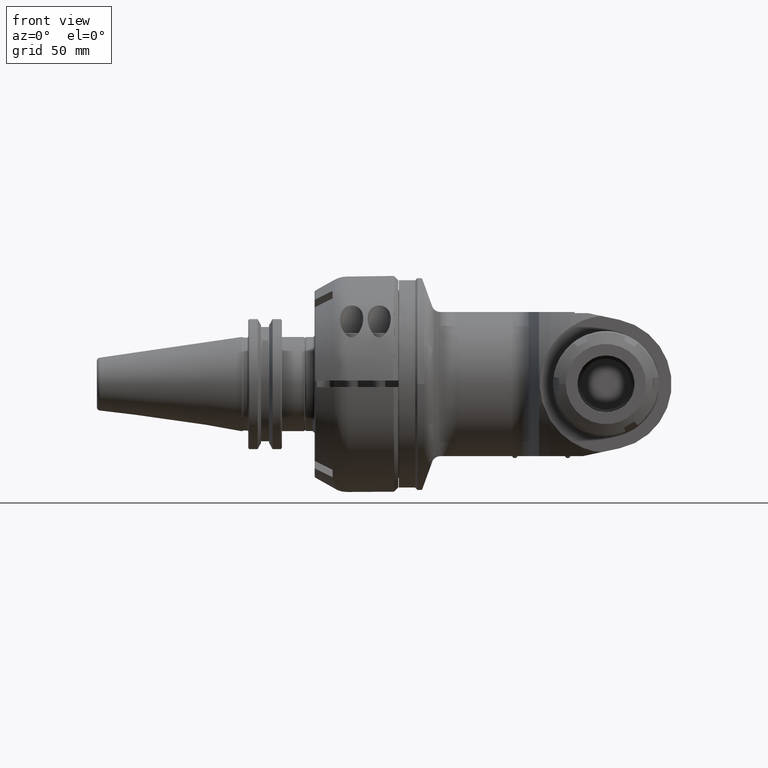
[diagram: clean part render]
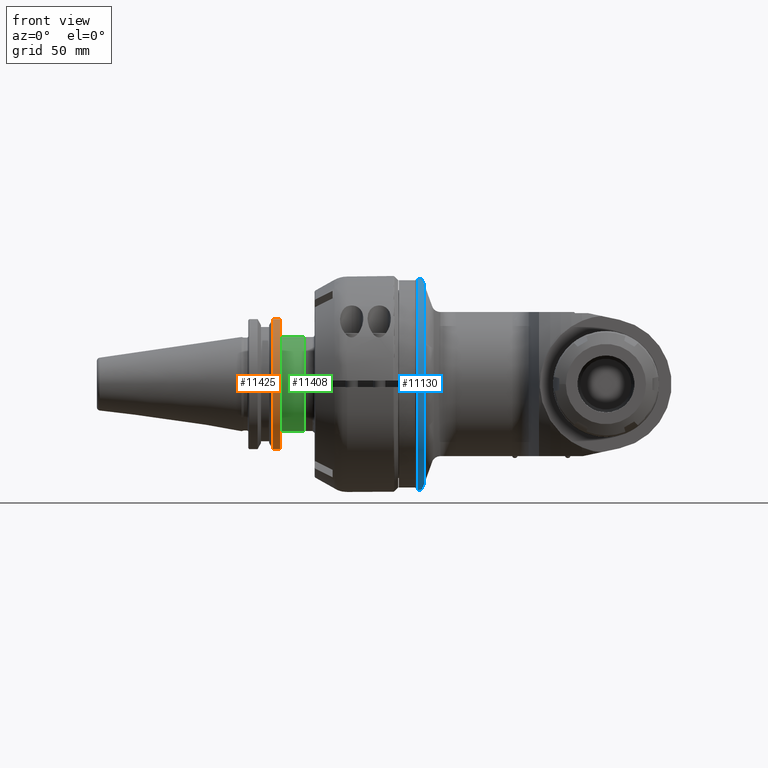
[diagram: same view with three faces highlighted in distinct colors, each labeled with its STEP entity id]
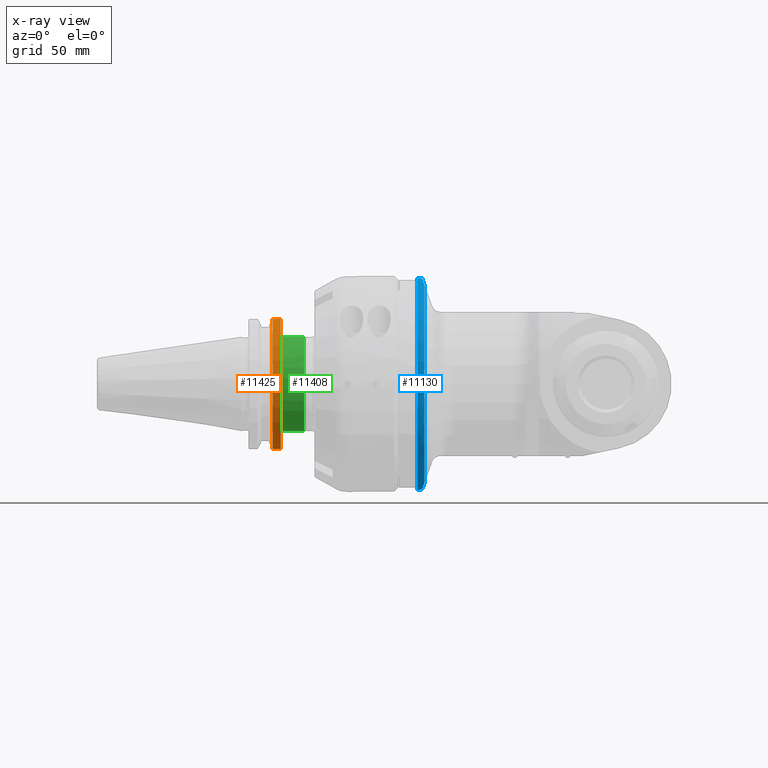
[diagram: x-ray of the same camera — body ghosted, the three highlighted faces saturated]
A machine part, front view with three faces highlighted in distinct colors.
The next image is the same camera in x-ray (body ghosted, the three faces saturated) — at least one of them is partly hidden behind the body in this view.
Their STEP definitions:

[orange] entity #11425 — the highlighted cylindrical surface (partial cylindrical patch) has radius 31.75 mm, axis along (1, 0, 0).
#1208=LINE('',#28656,#1882);
#1216=LINE('',#28742,#1890);
#1882=VECTOR('',#15844,3.88932990993402);
#1890=VECTOR('',#15860,3.88932990948002);
#2099=CYLINDRICAL_SURFACE('',#12715,31.75);
#2860=FACE_OUTER_BOUND('',#3603,.T.);
#3603=EDGE_LOOP('',(#10246,#10247,#10248,#10249));
#4224=CIRCLE('',#12714,31.75);
#4225=CIRCLE('',#12716,31.75);
#5309=VERTEX_POINT('',#28635);
#5310=VERTEX_POINT('',#28655);
#5321=VERTEX_POINT('',#28734);
#5322=VERTEX_POINT('',#28741);
#6964=EDGE_CURVE('',#5310,#5309,#1208,.T.);
#6980=EDGE_CURVE('',#5322,#5321,#1216,.T.);
#6982=EDGE_CURVE('',#5322,#5309,#4224,.T.);
#6983=EDGE_CURVE('',#5310,#5321,#4225,.T.);
#10246=ORIENTED_EDGE('',*,*,#6983,.F.);
#10247=ORIENTED_EDGE('',*,*,#6964,.T.);
#10248=ORIENTED_EDGE('',*,*,#6982,.F.);
#10249=ORIENTED_EDGE('',*,*,#6980,.T.);
#11425=ADVANCED_FACE('',(#2860),#2099,.T.);
#12714=AXIS2_PLACEMENT_3D('',#28763,#15863,#15864);
#12715=AXIS2_PLACEMENT_3D('',#28764,#15865,#15866);
#12716=AXIS2_PLACEMENT_3D('',#28765,#15867,#15868);
#15844=DIRECTION('',(-0.999999999999995,-9.55706743016595E-8,-2.55212608832199E-8));
#15860=DIRECTION('',(0.999999999999995,9.55799051954895E-8,-2.55237272048599E-8));
#15863=DIRECTION('center_axis',(-1.,0.,0.));
#15864=DIRECTION('ref_axis',(0.,-0.258000000000008,-0.96614491666623));
#15865=DIRECTION('center_axis',(1.,0.,0.));
#15866=DIRECTION('ref_axis',(0.,0.,1.));
#15867=DIRECTION('center_axis',(1.,0.,0.));
#15868=DIRECTION('ref_axis',(0.,-0.258000000000008,0.96614491666623));
#28635=CARTESIAN_POINT('',(120.723763787378,-8.19150055406944,30.675100977416));
#28655=CARTESIAN_POINT('',(124.613097,-8.1915,30.67510110415));
#28656=CARTESIAN_POINT('',(124.613097,-8.1915,30.67510110415));
#28734=CARTESIAN_POINT('',(124.613097,-8.1915,-30.67510110415));
#28741=CARTESIAN_POINT('',(120.723763787959,-8.19150055396325,-30.6751009778079));
#28742=CARTESIAN_POINT('',(120.7237670905,-8.191500371742,-30.67510100488));
#28763=CARTESIAN_POINT('Origin',(120.7237637691,0.,0.));
#28764=CARTESIAN_POINT('Origin',(117.175597,0.,0.));
#28765=CARTESIAN_POINT('Origin',(124.613097,0.,0.));

[blue] entity #11130 — the highlighted cylindrical surface (bore or boss wall) has radius 50 mm, axis along (-1, 0, 0).
#312=ELLIPSE('',#12152,53.2088886237962,50.);
#313=ELLIPSE('',#12154,53.2088886237962,50.);
#963=LINE('',#20602,#1637);
#1637=VECTOR('',#14483,50.);
#2036=CYLINDRICAL_SURFACE('',#12150,50.);
#2565=FACE_OUTER_BOUND('',#3278,.T.);
#3278=EDGE_LOOP('',(#8672,#8673,#8674,#8675,#8676,#8677,#8678,#8679,#8680));
#3996=CIRCLE('',#12148,50.);
#3997=CIRCLE('',#12149,50.);
#3998=CIRCLE('',#12151,50.);
#3999=CIRCLE('',#12153,50.);
#4000=CIRCLE('',#12155,50.);
#4806=VERTEX_POINT('',#20595);
#4807=VERTEX_POINT('',#20596);
#4808=VERTEX_POINT('',#20601);
#4809=VERTEX_POINT('',#20603);
#4810=VERTEX_POINT('',#20605);
#4811=VERTEX_POINT('',#20607);
#4812=VERTEX_POINT('',#20609);
#6194=EDGE_CURVE('',#4806,#4807,#3996,.T.);
#6196=EDGE_CURVE('',#4807,#4806,#3997,.T.);
#6197=EDGE_CURVE('',#4806,#4808,#963,.T.);
#6198=EDGE_CURVE('',#4809,#4808,#3998,.T.);
#6199=EDGE_CURVE('',#4810,#4809,#312,.T.);
#6200=EDGE_CURVE('',#4811,#4810,#3999,.T.);
#6201=EDGE_CURVE('',#4811,#4812,#313,.T.);
#6202=EDGE_CURVE('',#4808,#4812,#4000,.T.);
#8672=ORIENTED_EDGE('',*,*,#6194,.F.);
#8673=ORIENTED_EDGE('',*,*,#6197,.T.);
#8674=ORIENTED_EDGE('',*,*,#6198,.F.);
#8675=ORIENTED_EDGE('',*,*,#6199,.F.);
#8676=ORIENTED_EDGE('',*,*,#6200,.F.);
#8677=ORIENTED_EDGE('',*,*,#6201,.T.);
#8678=ORIENTED_EDGE('',*,*,#6202,.F.);
#8679=ORIENTED_EDGE('',*,*,#6197,.F.);
#8680=ORIENTED_EDGE('',*,*,#6196,.F.);
#11130=ADVANCED_FACE('',(#2565),#2036,.T.);
#12148=AXIS2_PLACEMENT_3D('',#20597,#14476,#14477);
#12149=AXIS2_PLACEMENT_3D('',#20599,#14479,#14480);
#12150=AXIS2_PLACEMENT_3D('',#20600,#14481,#14482);
#12151=AXIS2_PLACEMENT_3D('',#20604,#14484,#14485);
#12152=AXIS2_PLACEMENT_3D('',#20606,#14486,#14487);
#12153=AXIS2_PLACEMENT_3D('',#20608,#14488,#14489);
#12154=AXIS2_PLACEMENT_3D('',#20610,#14490,#14491);
#12155=AXIS2_PLACEMENT_3D('',#20611,#14492,#14493);
#14476=DIRECTION('center_axis',(-1.,0.,0.));
#14477=DIRECTION('ref_axis',(0.,1.,0.));
#14479=DIRECTION('center_axis',(-1.,0.,0.));
#14480=DIRECTION('ref_axis',(0.,1.,0.));
#14481=DIRECTION('center_axis',(-1.,0.,0.));
#14482=DIRECTION('ref_axis',(0.,1.,0.));
#14483=DIRECTION('',(1.,0.,0.));
#14484=DIRECTION('center_axis',(1.,0.,0.));
#14485=DIRECTION('ref_axis',(0.,-0.348098553492607,0.937457944153419));
#14486=DIRECTION('center_axis',(0.939692620785897,0.,0.342020143325699));
#14487=DIRECTION('ref_axis',(0.342020143325699,0.,-0.939692620785897));
#14488=DIRECTION('center_axis',(1.,0.,0.));
#14489=DIRECTION('ref_axis',(0.,0.348098553492607,-0.937457944153419));
#14490=DIRECTION('center_axis',(-0.939692620785897,0.,0.342020143325699));
#14491=DIRECTION('ref_axis',(-0.342020143325699,0.,-0.939692620785897));
#14492=DIRECTION('center_axis',(1.,0.,0.));
#14493=DIRECTION('ref_axis',(0.,-0.348098553492607,0.937457944153419));
#20595=CARTESIAN_POINT('',(189.063097,-50.,-1.836970198721E-14));
#20596=CARTESIAN_POINT('',(189.063097,50.,6.12323399573677E-15));
#20597=CARTESIAN_POINT('Origin',(189.063097,0.,0.));
#20599=CARTESIAN_POINT('Origin',(189.063097,0.,0.));
#20600=CARTESIAN_POINT('Origin',(230.669348,0.,0.));
#20601=CARTESIAN_POINT('',(192.377745635738,-50.,6.12323399573677E-15));
#20602=CARTESIAN_POINT('',(230.669348,-50.,6.12323399573677E-15));
#20603=CARTESIAN_POINT('',(192.3777456357,-17.40492767463,46.87289720767));
#20604=CARTESIAN_POINT('Origin',(192.3777456357,0.,0.));
#20605=CARTESIAN_POINT('',(192.3777456357,17.40492767463,46.87289720767));
#20606=CARTESIAN_POINT('Origin',(209.438085013152,0.,0.));
#20607=CARTESIAN_POINT('',(192.3777456357,17.40492767463,-46.87289720767));
#20608=CARTESIAN_POINT('Origin',(192.3777456357,0.,0.));
#20609=CARTESIAN_POINT('',(192.3777456357,-17.40492767463,-46.87289720767));
#20610=CARTESIAN_POINT('Origin',(209.438085013152,0.,0.));
#20611=CARTESIAN_POINT('Origin',(192.3777456357,0.,0.));

[green] entity #11408 — the highlighted cylindrical surface (bore or boss wall) has radius 22.225 mm, axis along (1, 0, 0).
#1180=LINE('',#28445,#1854);
#1854=VECTOR('',#15764,22.225);
#2096=CYLINDRICAL_SURFACE('',#12682,22.225);
#2843=FACE_OUTER_BOUND('',#3583,.T.);
#3583=EDGE_LOOP('',(#10134,#10135,#10136,#10137,#10138));
#4207=CIRCLE('',#12680,22.225);
#4208=CIRCLE('',#12681,22.225);
#4209=CIRCLE('',#12683,22.225);
#5270=VERTEX_POINT('',#28438);
#5271=VERTEX_POINT('',#28439);
#5272=VERTEX_POINT('',#28444);
#6911=EDGE_CURVE('',#5270,#5271,#4207,.T.);
#6913=EDGE_CURVE('',#5271,#5270,#4208,.T.);
#6914=EDGE_CURVE('',#5270,#5272,#1180,.T.);
#6915=EDGE_CURVE('',#5272,#5272,#4209,.T.);
#10134=ORIENTED_EDGE('',*,*,#6911,.F.);
#10135=ORIENTED_EDGE('',*,*,#6914,.T.);
#10136=ORIENTED_EDGE('',*,*,#6915,.F.);
#10137=ORIENTED_EDGE('',*,*,#6914,.F.);
#10138=ORIENTED_EDGE('',*,*,#6913,.F.);
#11408=ADVANCED_FACE('',(#2843),#2096,.T.);
#12680=AXIS2_PLACEMENT_3D('',#28440,#15757,#15758);
#12681=AXIS2_PLACEMENT_3D('',#28442,#15760,#15761);
#12682=AXIS2_PLACEMENT_3D('',#28443,#15762,#15763);
#12683=AXIS2_PLACEMENT_3D('',#28446,#15765,#15766);
#15757=DIRECTION('center_axis',(1.,0.,0.));
#15758=DIRECTION('ref_axis',(0.,0.,-1.));
#15760=DIRECTION('center_axis',(1.,0.,0.));
#15761=DIRECTION('ref_axis',(0.,0.,-1.));
#15762=DIRECTION('center_axis',(1.,0.,0.));
#15763=DIRECTION('ref_axis',(0.,0.,1.));
#15764=DIRECTION('',(-1.,0.,0.));
#15765=DIRECTION('center_axis',(-1.,0.,0.));
#15766=DIRECTION('ref_axis',(0.,0.,1.));
#28438=CARTESIAN_POINT('',(135.563097,0.,-22.225));
#28439=CARTESIAN_POINT('',(135.563097,2.72177751110499E-15,22.225));
#28440=CARTESIAN_POINT('Origin',(135.563097,0.,0.));
#28442=CARTESIAN_POINT('Origin',(135.563097,0.,0.));
#28443=CARTESIAN_POINT('Origin',(130.588097,0.,0.));
#28444=CARTESIAN_POINT('',(125.113097,2.72177751110499E-15,-22.225));
#28445=CARTESIAN_POINT('',(130.588097,2.72177751110499E-15,-22.225));
#28446=CARTESIAN_POINT('Origin',(125.113097,0.,0.));